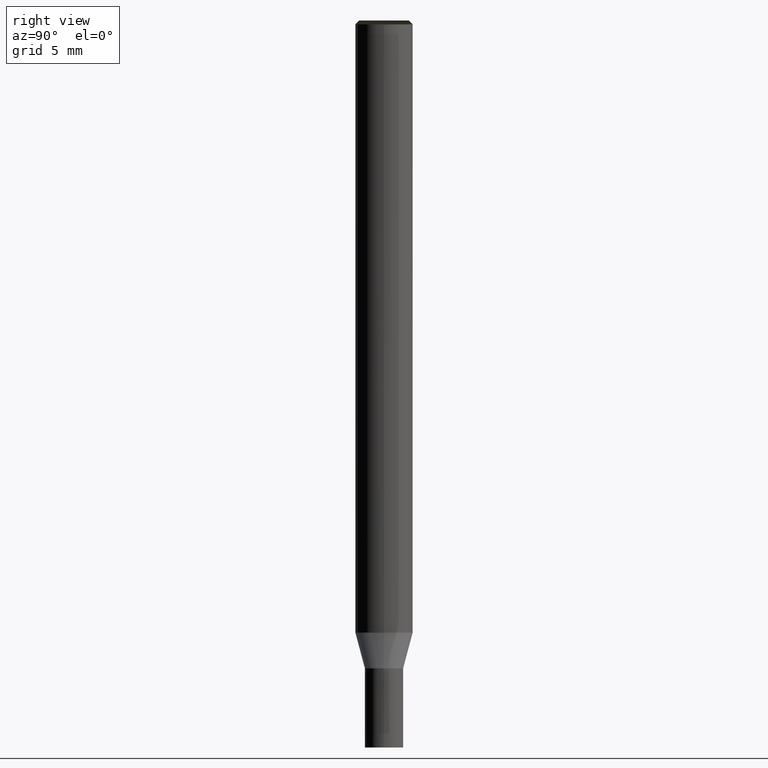
[diagram: clean part render]
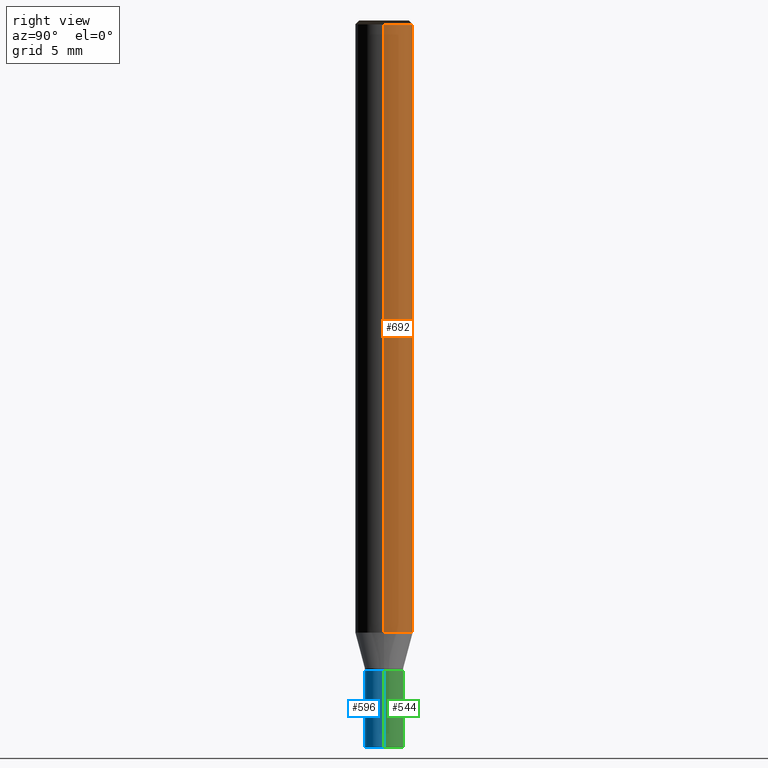
[diagram: same view with three faces highlighted in distinct colors, each labeled with its STEP entity id]
A machine part, right view with three faces highlighted in distinct colors.
Their STEP definitions:

[orange] entity #692 — the highlighted face is a freeform B-spline surface patch.
#475=CARTESIAN_POINT('',(1.5,0.0,0.0));
#476=CARTESIAN_POINT('',(1.5,1.5,0.0));
#477=CARTESIAN_POINT('',(0.0,1.5,0.0));
#478=CARTESIAN_POINT('',(-1.5,1.5,0.0));
#479=CARTESIAN_POINT('',(-1.5,0.0,0.0));
#480=CARTESIAN_POINT('',(1.5,0.0,31.8));
#481=CARTESIAN_POINT('',(1.5,1.5,31.8));
#482=CARTESIAN_POINT('',(0.0,1.5,31.8));
#483=CARTESIAN_POINT('',(-1.5,1.5,31.8));
#484=CARTESIAN_POINT('',(-1.5,0.0,31.8));
#673=(
BOUNDED_SURFACE()
B_SPLINE_SURFACE(1,2,(
(#475,#476,#477,#478,#479),
(#480,#481,#482,#483,#484)
), .UNSPECIFIED.,.F.,.F.,.F.)
B_SPLINE_SURFACE_WITH_KNOTS((2,2),(3,2,3),(
0.0,1.0),(
0.0,0.5,1.0), .UNSPECIFIED.)
GEOMETRIC_REPRESENTATION_ITEM()
RATIONAL_B_SPLINE_SURFACE(((1.0,0.707106781187,1.0,0.707106781187,1.0),
(1.0,0.707106781187,1.0,0.707106781187,1.0)
))
REPRESENTATION_ITEM('')
SURFACE()
);
#674=(
BOUNDED_CURVE()
B_SPLINE_CURVE(2,(#479,#478,#477,#476,#475),.UNSPECIFIED.,.F.,.F.)
B_SPLINE_CURVE_WITH_KNOTS((3,2,3),
(0.0,0.5,1.0),.UNSPECIFIED.)
CURVE()
GEOMETRIC_REPRESENTATION_ITEM()
RATIONAL_B_SPLINE_CURVE((1.0,0.707106781187,1.0,0.707106781187,1.0))
REPRESENTATION_ITEM('')
);
#675=(
BOUNDED_CURVE()
B_SPLINE_CURVE(1,(#475,#480),.UNSPECIFIED.,.F.,.F.)
B_SPLINE_CURVE_WITH_KNOTS((2,2),
(0.0,1.0),.UNSPECIFIED.)
CURVE()
GEOMETRIC_REPRESENTATION_ITEM()
RATIONAL_B_SPLINE_CURVE((1.0,1.0))
REPRESENTATION_ITEM('')
);
#676=(
BOUNDED_CURVE()
B_SPLINE_CURVE(2,(#480,#481,#482,#483,#484),.UNSPECIFIED.,.F.,.F.)
B_SPLINE_CURVE_WITH_KNOTS((3,2,3),
(0.0,0.5,1.0),.UNSPECIFIED.)
CURVE()
GEOMETRIC_REPRESENTATION_ITEM()
RATIONAL_B_SPLINE_CURVE((1.0,0.707106781187,1.0,0.707106781187,1.0))
REPRESENTATION_ITEM('')
);
#677=(
BOUNDED_CURVE()
B_SPLINE_CURVE(1,(#484,#479),.UNSPECIFIED.,.F.,.F.)
B_SPLINE_CURVE_WITH_KNOTS((2,2),
(0.0,1.0),.UNSPECIFIED.)
CURVE()
GEOMETRIC_REPRESENTATION_ITEM()
RATIONAL_B_SPLINE_CURVE((1.0,1.0))
REPRESENTATION_ITEM('')
);
#678=VERTEX_POINT('',#475);
#679=VERTEX_POINT('',#479);
#680=VERTEX_POINT('',#480);
#681=VERTEX_POINT('',#484);
#682=EDGE_CURVE('',#679,#678,#674,.T.);
#683=EDGE_CURVE('',#678,#680,#675,.T.);
#684=EDGE_CURVE('',#680,#681,#676,.T.);
#685=EDGE_CURVE('',#681,#679,#677,.T.);
#686=ORIENTED_EDGE('',*,*,#682,.T.);
#687=ORIENTED_EDGE('',*,*,#683,.T.);
#688=ORIENTED_EDGE('',*,*,#684,.T.);
#689=ORIENTED_EDGE('',*,*,#685,.T.);
#690=EDGE_LOOP('',(#686,#687,#688,#689));
#691=FACE_OUTER_BOUND('',#690,.T.);
#692=ADVANCED_FACE('',(#691),#673,.T.);

[blue] entity #596 — the highlighted face is a freeform B-spline surface patch.
#109=CARTESIAN_POINT('',(0.0,-1.0,-6.0));
#454=CARTESIAN_POINT('',(1.0,0.0,-6.0));
#458=CARTESIAN_POINT('',(-1.0,0.0,-6.0));
#459=CARTESIAN_POINT('',(1.0,0.0,-2.0));
#463=CARTESIAN_POINT('',(-1.0,0.0,-2.0));
#465=CARTESIAN_POINT('',(-1.0,-1.0,-6.0));
#466=CARTESIAN_POINT('',(1.0,-1.0,-6.0));
#467=CARTESIAN_POINT('',(-1.0,-1.0,-2.0));
#468=CARTESIAN_POINT('',(0.0,-1.0,-2.0));
#469=CARTESIAN_POINT('',(1.0,-1.0,-2.0));
#577=(
BOUNDED_SURFACE()
B_SPLINE_SURFACE(1,2,(
(#458,#465,#109,#466,#454),
(#463,#467,#468,#469,#459)
), .UNSPECIFIED.,.F.,.F.,.F.)
B_SPLINE_SURFACE_WITH_KNOTS((2,2),(3,2,3),(
0.0,1.0),(
0.0,0.5,1.0), .UNSPECIFIED.)
GEOMETRIC_REPRESENTATION_ITEM()
RATIONAL_B_SPLINE_SURFACE(((1.0,0.707106781187,1.0,0.707106781187,1.0),
(1.0,0.707106781187,1.0,0.707106781187,1.0)
))
REPRESENTATION_ITEM('')
SURFACE()
);
#578=(
BOUNDED_CURVE()
B_SPLINE_CURVE(2,(#454,#466,#109,#465,#458),.UNSPECIFIED.,.F.,.F.)
B_SPLINE_CURVE_WITH_KNOTS((3,2,3),
(0.0,0.5,1.0),.UNSPECIFIED.)
CURVE()
GEOMETRIC_REPRESENTATION_ITEM()
RATIONAL_B_SPLINE_CURVE((1.0,0.707106781187,1.0,0.707106781187,1.0))
REPRESENTATION_ITEM('')
);
#579=(
BOUNDED_CURVE()
B_SPLINE_CURVE(1,(#458,#463),.UNSPECIFIED.,.F.,.F.)
B_SPLINE_CURVE_WITH_KNOTS((2,2),
(0.0,1.0),.UNSPECIFIED.)
CURVE()
GEOMETRIC_REPRESENTATION_ITEM()
RATIONAL_B_SPLINE_CURVE((1.0,1.0))
REPRESENTATION_ITEM('')
);
#580=(
BOUNDED_CURVE()
B_SPLINE_CURVE(2,(#463,#467,#468,#469,#459),.UNSPECIFIED.,.F.,.F.)
B_SPLINE_CURVE_WITH_KNOTS((3,2,3),
(0.0,0.5,1.0),.UNSPECIFIED.)
CURVE()
GEOMETRIC_REPRESENTATION_ITEM()
RATIONAL_B_SPLINE_CURVE((1.0,0.707106781187,1.0,0.707106781187,1.0))
REPRESENTATION_ITEM('')
);
#581=(
BOUNDED_CURVE()
B_SPLINE_CURVE(1,(#459,#454),.UNSPECIFIED.,.F.,.F.)
B_SPLINE_CURVE_WITH_KNOTS((2,2),
(0.0,1.0),.UNSPECIFIED.)
CURVE()
GEOMETRIC_REPRESENTATION_ITEM()
RATIONAL_B_SPLINE_CURVE((1.0,1.0))
REPRESENTATION_ITEM('')
);
#582=VERTEX_POINT('',#454);
#583=VERTEX_POINT('',#458);
#584=VERTEX_POINT('',#459);
#585=VERTEX_POINT('',#463);
#586=EDGE_CURVE('',#582,#583,#578,.T.);
#587=EDGE_CURVE('',#583,#585,#579,.T.);
#588=EDGE_CURVE('',#585,#584,#580,.T.);
#589=EDGE_CURVE('',#584,#582,#581,.T.);
#590=ORIENTED_EDGE('',*,*,#586,.T.);
#591=ORIENTED_EDGE('',*,*,#587,.T.);
#592=ORIENTED_EDGE('',*,*,#588,.T.);
#593=ORIENTED_EDGE('',*,*,#589,.T.);
#594=EDGE_LOOP('',(#590,#591,#592,#593));
#595=FACE_OUTER_BOUND('',#594,.T.);
#596=ADVANCED_FACE('',(#595),#577,.T.);

[green] entity #544 — the highlighted face is a freeform B-spline surface patch.
#454=CARTESIAN_POINT('',(1.0,0.0,-6.0));
#455=CARTESIAN_POINT('',(1.0,1.0,-6.0));
#456=CARTESIAN_POINT('',(0.0,1.0,-6.0));
#457=CARTESIAN_POINT('',(-1.0,1.0,-6.0));
#458=CARTESIAN_POINT('',(-1.0,0.0,-6.0));
#459=CARTESIAN_POINT('',(1.0,0.0,-2.0));
#460=CARTESIAN_POINT('',(1.0,1.0,-2.0));
#461=CARTESIAN_POINT('',(0.0,1.0,-2.0));
#462=CARTESIAN_POINT('',(-1.0,1.0,-2.0));
#463=CARTESIAN_POINT('',(-1.0,0.0,-2.0));
#525=(
BOUNDED_SURFACE()
B_SPLINE_SURFACE(1,2,(
(#454,#455,#456,#457,#458),
(#459,#460,#461,#462,#463)
), .UNSPECIFIED.,.F.,.F.,.F.)
B_SPLINE_SURFACE_WITH_KNOTS((2,2),(3,2,3),(
0.0,1.0),(
0.0,0.5,1.0), .UNSPECIFIED.)
GEOMETRIC_REPRESENTATION_ITEM()
RATIONAL_B_SPLINE_SURFACE(((1.0,0.707106781187,1.0,0.707106781187,1.0),
(1.0,0.707106781187,1.0,0.707106781187,1.0)
))
REPRESENTATION_ITEM('')
SURFACE()
);
#526=(
BOUNDED_CURVE()
B_SPLINE_CURVE(2,(#458,#457,#456,#455,#454),.UNSPECIFIED.,.F.,.F.)
B_SPLINE_CURVE_WITH_KNOTS((3,2,3),
(0.0,0.5,1.0),.UNSPECIFIED.)
CURVE()
GEOMETRIC_REPRESENTATION_ITEM()
RATIONAL_B_SPLINE_CURVE((1.0,0.707106781187,1.0,0.707106781187,1.0))
REPRESENTATION_ITEM('')
);
#527=(
BOUNDED_CURVE()
B_SPLINE_CURVE(1,(#454,#459),.UNSPECIFIED.,.F.,.F.)
B_SPLINE_CURVE_WITH_KNOTS((2,2),
(0.0,1.0),.UNSPECIFIED.)
CURVE()
GEOMETRIC_REPRESENTATION_ITEM()
RATIONAL_B_SPLINE_CURVE((1.0,1.0))
REPRESENTATION_ITEM('')
);
#528=(
BOUNDED_CURVE()
B_SPLINE_CURVE(2,(#459,#460,#461,#462,#463),.UNSPECIFIED.,.F.,.F.)
B_SPLINE_CURVE_WITH_KNOTS((3,2,3),
(0.0,0.5,1.0),.UNSPECIFIED.)
CURVE()
GEOMETRIC_REPRESENTATION_ITEM()
RATIONAL_B_SPLINE_CURVE((1.0,0.707106781187,1.0,0.707106781187,1.0))
REPRESENTATION_ITEM('')
);
#529=(
BOUNDED_CURVE()
B_SPLINE_CURVE(1,(#463,#458),.UNSPECIFIED.,.F.,.F.)
B_SPLINE_CURVE_WITH_KNOTS((2,2),
(0.0,1.0),.UNSPECIFIED.)
CURVE()
GEOMETRIC_REPRESENTATION_ITEM()
RATIONAL_B_SPLINE_CURVE((1.0,1.0))
REPRESENTATION_ITEM('')
);
#530=VERTEX_POINT('',#454);
#531=VERTEX_POINT('',#458);
#532=VERTEX_POINT('',#459);
#533=VERTEX_POINT('',#463);
#534=EDGE_CURVE('',#531,#530,#526,.T.);
#535=EDGE_CURVE('',#530,#532,#527,.T.);
#536=EDGE_CURVE('',#532,#533,#528,.T.);
#537=EDGE_CURVE('',#533,#531,#529,.T.);
#538=ORIENTED_EDGE('',*,*,#534,.T.);
#539=ORIENTED_EDGE('',*,*,#535,.T.);
#540=ORIENTED_EDGE('',*,*,#536,.T.);
#541=ORIENTED_EDGE('',*,*,#537,.T.);
#542=EDGE_LOOP('',(#538,#539,#540,#541));
#543=FACE_OUTER_BOUND('',#542,.T.);
#544=ADVANCED_FACE('',(#543),#525,.T.);